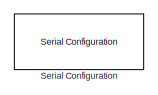
[diagram: root canvas - part 1/4, top left region]
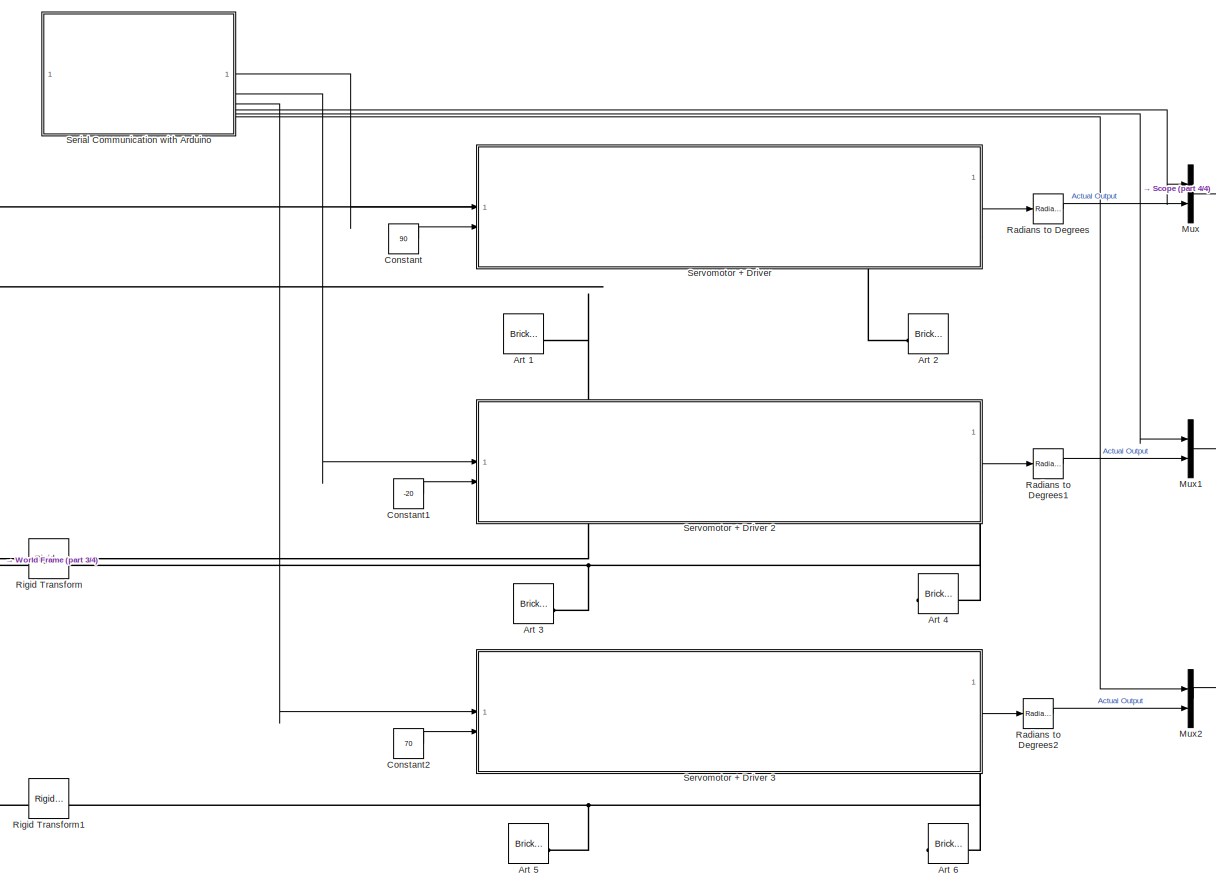
[diagram: root canvas - part 2/4, center side, full height]
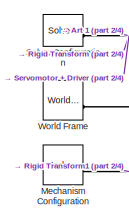
[diagram: root canvas - part 3/4, bottom left region]
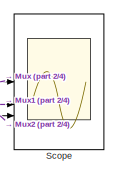
[diagram: root canvas - part 4/4, bottom right region]
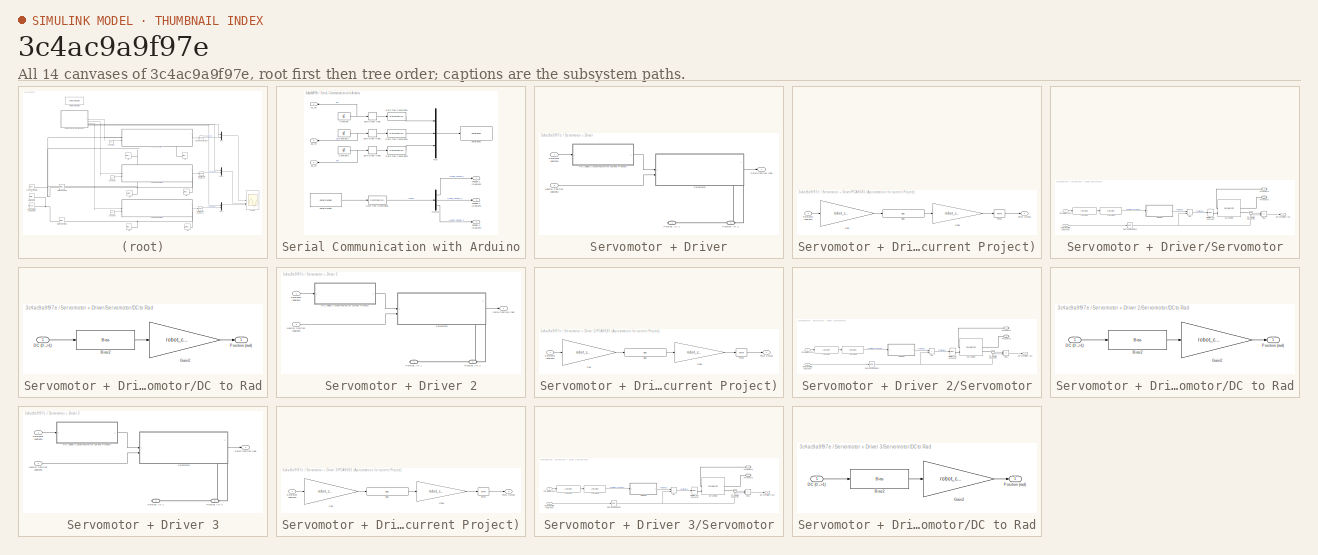
[diagram: thumbnail index - all 14 canvases of the model, root first then tree order]
MODEL slx_3c4ac9a9f97e
KIND model
CONFIG AbsTol = 1e-3
CONFIG EnableMultiTasking = off
CONFIG FixedStep = 0.001
CONFIG MaxStep = auto
CONFIG MinStep = auto
CONFIG RelTol = 1e-3
CONFIG SampleTimeConstraint = Unconstrained
CONFIG SolverName = VariableStepAuto
CONFIG StartTime = 0.0
CONFIG StopTime = 1
BLOCK [Reference] Art 1  REF=sm_lib/Body Elements/Brick Solid
  SourceBlock = sm_lib/Body Elements/Brick Solid
  SourceType = Brick Solid
BLOCK [Reference] Art 2  REF=sm_lib/Body Elements/Brick Solid
  SourceBlock = sm_lib/Body Elements/Brick Solid
  SourceType = Brick Solid
BLOCK [Reference] Art 3  REF=sm_lib/Body Elements/Brick Solid
  SourceBlock = sm_lib/Body Elements/Brick Solid
  SourceType = Brick Solid
BLOCK [Reference] Art 4  REF=sm_lib/Body Elements/Brick Solid
  SourceBlock = sm_lib/Body Elements/Brick Solid
  SourceType = Brick Solid
BLOCK [Reference] Art 5  REF=sm_lib/Body Elements/Brick Solid
  SourceBlock = sm_lib/Body Elements/Brick Solid
  SourceType = Brick Solid
BLOCK [Reference] Art 6  REF=sm_lib/Body Elements/Brick Solid
  SourceBlock = sm_lib/Body Elements/Brick Solid
  SourceType = Brick Solid
BLOCK [Constant] Constant
  Value = 90
BLOCK [Constant] Constant1
  Value = -20
BLOCK [Constant] Constant2
  Value = 70
BLOCK [Reference] Mechanism Configuration  REF=sm_lib/Utilities/Mechanism
Configuration
  SourceBlock = sm_lib/Utilities/Mechanism\nConfiguration
  SourceType = Mechanism\nConfiguration
BLOCK [Mux] Mux
  DisplayOption = bar
  Inputs = 2
BLOCK [Mux] Mux1
  DisplayOption = bar
  Inputs = 2
BLOCK [Mux] Mux2
  DisplayOption = bar
  Inputs = 2
BLOCK [Reference] Radians to Degrees  REF=simulink_extras/Transformations/Radians
to Degrees
  SourceBlock = simulink_extras/Transformations/Radians\nto Degrees
  SourceType = RadiansToDegrees
BLOCK [Reference] Radians to Degrees1  REF=simulink_extras/Transformations/Radians
to Degrees
  SourceBlock = simulink_extras/Transformations/Radians\nto Degrees
  SourceType = RadiansToDegrees
BLOCK [Reference] Radians to Degrees2  REF=simulink_extras/Transformations/Radians
to Degrees
  SourceBlock = simulink_extras/Transformations/Radians\nto Degrees
  SourceType = RadiansToDegrees
BLOCK [Reference] Rigid Transform  REF=sm_lib/Frames and
Transforms/Rigid
Transform
  SourceBlock = sm_lib/Frames and\nTransforms/Rigid\nTransform
  SourceType = Rigid\nTransform
BLOCK [Reference] Rigid Transform1  REF=sm_lib/Frames and
Transforms/Rigid
Transform
  SourceBlock = sm_lib/Frames and\nTransforms/Rigid\nTransform
  SourceType = Rigid\nTransform
BLOCK [Scope] Scope
  Floating = off
  NumInputPorts = 3
  ScopeSpecificationString = Simulink.scopes.TimeScopeBlockCfg('CurrentConfiguration', extmgr.ConfigurationSet(extmgr.Configuration('Core','General UI',true,'FigureColor',[0.501960784313725 0.501960784313725 0.501960784313725]),extmgr.Configuration('Core','Source UI',true),extmgr.Configuration('Sources','WiredSimulink',true),extmgr.Configuration('Visuals','Time Domain',true,'SerializedDisplays',{struct('MinYLimReal','-206.083...<+3864ch>
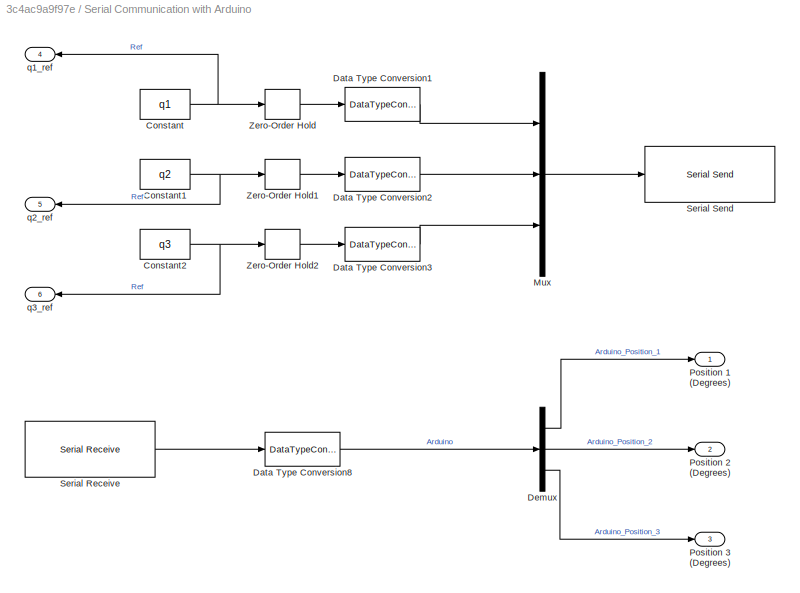
BLOCK [SubSystem] Serial Communication with Arduino
BLOCK [Constant] Serial Communication with Arduino/Constant
  Value = q1
BLOCK [Constant] Serial Communication with Arduino/Constant1
  Value = q2
BLOCK [Constant] Serial Communication with Arduino/Constant2
  Value = q3
BLOCK [DataTypeConversion] Serial Communication with Arduino/Data Type Conversion1
  OutDataTypeStr = single
  RndMeth = Floor
  SaturateOnIntegerOverflow = off
BLOCK [DataTypeConversion] Serial Communication with Arduino/Data Type Conversion2
  OutDataTypeStr = single
  RndMeth = Floor
  SaturateOnIntegerOverflow = off
BLOCK [DataTypeConversion] Serial Communication with Arduino/Data Type Conversion3
  OutDataTypeStr = single
  RndMeth = Floor
  SaturateOnIntegerOverflow = off
BLOCK [DataTypeConversion] Serial Communication with Arduino/Data Type Conversion8
  OutDataTypeStr = double
  RndMeth = Floor
  SaturateOnIntegerOverflow = off
BLOCK [Demux] Serial Communication with Arduino/Demux
  Outputs = 3
BLOCK [Mux] Serial Communication with Arduino/Mux
  DisplayOption = bar
  Inputs = 3
BLOCK [Outport] Serial Communication with Arduino/Position 1 (Degrees)
  NameLocation = right
BLOCK [Outport] Serial Communication with Arduino/Position 2 (Degrees)
  NameLocation = right
  Port = 2
BLOCK [Outport] Serial Communication with Arduino/Position 3 (Degrees)
  NameLocation = right
  Port = 3
BLOCK [Reference] Serial Communication with Arduino/Serial Receive  REF=instrumentseriallib/Serial Receive
  LibrarySourceBlock = instrumentlib/Serial Receive
  Priority = 1
  SourceBlock = instrumentseriallib/Serial Receive
  SourceType = system.SerialReceive
BLOCK [Reference] Serial Communication with Arduino/Serial Send  REF=instrumentseriallib/Serial Send
  LibrarySourceBlock = instrumentlib/Serial Send
  Priority = 1
  SourceBlock = instrumentseriallib/Serial Send
  SourceType = system.SerialSend
BLOCK [ZeroOrderHold] Serial Communication with Arduino/Zero-Order Hold
  SampleTime = 0.01
BLOCK [ZeroOrderHold] Serial Communication with Arduino/Zero-Order Hold1
  SampleTime = 0.01
BLOCK [ZeroOrderHold] Serial Communication with Arduino/Zero-Order Hold2
  SampleTime = 0.01
BLOCK [Outport] Serial Communication with Arduino/q1_ref
  Port = 4
BLOCK [Outport] Serial Communication with Arduino/q2_ref
  Port = 5
BLOCK [Outport] Serial Communication with Arduino/q3_ref
  Port = 6
BLOCK [Reference] Serial Configuration  REF=instrumentseriallib/Serial Configuration
  LibrarySourceBlock = instrumentlib/Serial Configuration
  Priority = -200000
  SourceBlock = instrumentseriallib/Serial Configuration
  SourceType = system.SerialConfiguration
BLOCK [SubSystem] Servomotor + Driver
  PortSchema = {"entries":[{"content":{"sides":[{"content":{"connectorIds":["In1","In2"]},"type":"ConnectorPlacement.EquallySpacedRectSide","uuid":"34aed934-2639-4a00-aaee-cf3027466446"},{"content":{"connectorIds":["Out1"],"side":"RIGHT"},"type":"ConnectorPlacement.EquallySpacedRectSide","uuid":"6801890d-3466-4e37-90e8-6d1471e5b2c4"},{"content":{"side":"TOP"},"type":"ConnectorPlacement.EquallySpacedRectSide","uu...<+389ch>  <repeated x3 — deduplicated; at blocks: Servomotor + Driver, Servomotor + Driver 2, Servomotor + Driver 3>
BLOCK [SubSystem] Servomotor + Driver 2
BLOCK [Inport] Servomotor + Driver 2/Neutral Position (degrees)
  Port = 2
BLOCK [SubSystem] Servomotor + Driver 2/PCA9685 (Aproximation for current Project)
BLOCK [Bias] Servomotor + Driver 2/PCA9685 (Aproximation for current Project)/Bias
  Bias = robot_conversions.steps_offset
  SaturateOnIntegerOverflow = off
BLOCK [Gain] Servomotor + Driver 2/PCA9685 (Aproximation for current Project)/Gain
  Gain = robot_conversions.steps_to_degrees
BLOCK [Gain] Servomotor + Driver 2/PCA9685 (Aproximation for current Project)/Gain1
  Gain = robot_conversions.degress_to_DC
BLOCK [Reference] Servomotor + Driver 2/PCA9685 (Aproximation for current Project)/PWM  REF=simulink/Discontinuities/PWM
  DisableCoverage = on
  SourceBlock = simulink/Discontinuities/PWM
  SourceType = PWM
BLOCK [Outport] Servomotor + Driver 2/PCA9685 (Aproximation for current Project)/PWM Output
  NameLocation = right
BLOCK [Inport] Servomotor + Driver 2/PCA9685 (Aproximation for current Project)/Reference (degrees)
  NameLocation = left
BLOCK [PMIOPort] Servomotor + Driver 2/Physical Art 1
  Side = Right
BLOCK [PMIOPort] Servomotor + Driver 2/Physical Art 2
  Port = 2
  Side = Right
BLOCK [Inport] Servomotor + Driver 2/Reference (degrees)
BLOCK [Outport] Servomotor + Driver 2/Servo Position (rad)
BLOCK [SubSystem] Servomotor + Driver 2/Servomotor
  PortSchema = {"entries":[{"content":{"sides":[{"content":{"connectorIds":["In1","In2"]},"type":"ConnectorPlacement.EquallySpacedRectSide","uuid":"eeff66d3-7cb0-4fe9-90b5-92935711e170"},{"content":{"connectorIds":["Out1"],"side":"RIGHT"},"type":"ConnectorPlacement.EquallySpacedRectSide","uuid":"4c1729b3-3224-4ed4-9eed-359312bd5e7e"},{"content":{"side":"TOP"},"type":"ConnectorPlacement.EquallySpacedRectSide","uu...<+389ch>  <repeated x3 — deduplicated; at blocks: Servomotor>
BLOCK [SubSystem] Servomotor + Driver 2/Servomotor/DC to Rad
BLOCK [Bias] Servomotor + Driver 2/Servomotor/DC to Rad/Bias2
  Bias = robot_conversions.DC_offset
  SaturateOnIntegerOverflow = off
BLOCK [Inport] Servomotor + Driver 2/Servomotor/DC to Rad/DC (0 -->1)
BLOCK [Gain] Servomotor + Driver 2/Servomotor/DC to Rad/Gain2
  Gain = robot_conversions.DC_to_rad
BLOCK [Outport] Servomotor + Driver 2/Servomotor/DC to Rad/Position (rad)
BLOCK [Reference] Servomotor + Driver 2/Servomotor/Degrees to Radians  REF=simulink_extras/Transformations/Degrees to
Radians
  SourceBlock = simulink_extras/Transformations/Degrees to\nRadians
  SourceType = DegreesToRadians
BLOCK [Reference] Servomotor + Driver 2/Servomotor/LTI System  REF=cstblocks/LTI System
  SourceBlock = cstblocks/LTI System
  SourceType = LTI Block
BLOCK [Reference] Servomotor + Driver 2/Servomotor/LTI System1  REF=cstblocks/LTI System
  SourceBlock = cstblocks/LTI System
  SourceType = LTI Block
BLOCK [Inport] Servomotor + Driver 2/Servomotor/Neutral Position (degrees)
  NameLocation = left
  Port = 2
BLOCK [Reference] Servomotor + Driver 2/Servomotor/PS-Simulink Converter  REF=nesl_utility/PS-Simulink
Converter
  SourceBlock = nesl_utility/PS-Simulink\nConverter
  SourceType = PS-Simulink\nConverter
BLOCK [Inport] Servomotor + Driver 2/Servomotor/PWM Reference
  NameLocation = left
BLOCK [PMIOPort] Servomotor + Driver 2/Servomotor/Physical Art 1
  Side = Right
BLOCK [PMIOPort] Servomotor + Driver 2/Servomotor/Physical Art 2
  Port = 2
  Side = Right
BLOCK [Sum] Servomotor + Driver 2/Servomotor/Plus
  IconShape = rectangular
BLOCK [Sum] Servomotor + Driver 2/Servomotor/Plus1
  IconShape = rectangular
  Inputs = +-
BLOCK [Outport] Servomotor + Driver 2/Servomotor/Servo Position (rad)
  NameLocation = right
BLOCK [Reference] Servomotor + Driver 2/Servomotor/Servomotor  REF=sm_lib/Joints/Revolute Joint
  SourceBlock = sm_lib/Joints/Revolute Joint
  SourceType = Revolute Joint
BLOCK [Reference] Servomotor + Driver 2/Servomotor/Simulink-PS Converter  REF=nesl_utility/Simulink-PS
Converter
  SourceBlock = nesl_utility/Simulink-PS\nConverter
  SourceType = Simulink-PS\nConverter
BLOCK [SubSystem] Servomotor + Driver 3
BLOCK [Inport] Servomotor + Driver 3/Neutral Position (degrees)
  Port = 2
BLOCK [SubSystem] Servomotor + Driver 3/PCA9685 (Aproximation for current Project)
BLOCK [Bias] Servomotor + Driver 3/PCA9685 (Aproximation for current Project)/Bias
  Bias = robot_conversions.steps_offset
  SaturateOnIntegerOverflow = off
BLOCK [Gain] Servomotor + Driver 3/PCA9685 (Aproximation for current Project)/Gain
  Gain = robot_conversions.steps_to_degrees
BLOCK [Gain] Servomotor + Driver 3/PCA9685 (Aproximation for current Project)/Gain1
  Gain = robot_conversions.degress_to_DC
BLOCK [Reference] Servomotor + Driver 3/PCA9685 (Aproximation for current Project)/PWM  REF=simulink/Discontinuities/PWM
  DisableCoverage = on
  SourceBlock = simulink/Discontinuities/PWM
  SourceType = PWM
BLOCK [Outport] Servomotor + Driver 3/PCA9685 (Aproximation for current Project)/PWM Output
  NameLocation = right
BLOCK [Inport] Servomotor + Driver 3/PCA9685 (Aproximation for current Project)/Reference (degrees)
  NameLocation = left
BLOCK [PMIOPort] Servomotor + Driver 3/Physical Art 1
  Side = Right
BLOCK [PMIOPort] Servomotor + Driver 3/Physical Art 2
  Port = 2
  Side = Right
BLOCK [Inport] Servomotor + Driver 3/Reference (degrees)
BLOCK [Outport] Servomotor + Driver 3/Servo Position (rad)
BLOCK [SubSystem] Servomotor + Driver 3/Servomotor
BLOCK [SubSystem] Servomotor + Driver 3/Servomotor/DC to Rad
BLOCK [Bias] Servomotor + Driver 3/Servomotor/DC to Rad/Bias2
  Bias = robot_conversions.DC_offset
  SaturateOnIntegerOverflow = off
BLOCK [Inport] Servomotor + Driver 3/Servomotor/DC to Rad/DC (0 -->1)
BLOCK [Gain] Servomotor + Driver 3/Servomotor/DC to Rad/Gain2
  Gain = robot_conversions.DC_to_rad
BLOCK [Outport] Servomotor + Driver 3/Servomotor/DC to Rad/Position (rad)
BLOCK [Reference] Servomotor + Driver 3/Servomotor/Degrees to Radians  REF=simulink_extras/Transformations/Degrees to
Radians
  SourceBlock = simulink_extras/Transformations/Degrees to\nRadians
  SourceType = DegreesToRadians
BLOCK [Reference] Servomotor + Driver 3/Servomotor/LTI System  REF=cstblocks/LTI System
  SourceBlock = cstblocks/LTI System
  SourceType = LTI Block
BLOCK [Reference] Servomotor + Driver 3/Servomotor/LTI System1  REF=cstblocks/LTI System
  SourceBlock = cstblocks/LTI System
  SourceType = LTI Block
BLOCK [Inport] Servomotor + Driver 3/Servomotor/Neutral Position (degrees)
  NameLocation = left
  Port = 2
BLOCK [Reference] Servomotor + Driver 3/Servomotor/PS-Simulink Converter  REF=nesl_utility/PS-Simulink
Converter
  SourceBlock = nesl_utility/PS-Simulink\nConverter
  SourceType = PS-Simulink\nConverter
BLOCK [Inport] Servomotor + Driver 3/Servomotor/PWM Reference
  NameLocation = left
BLOCK [PMIOPort] Servomotor + Driver 3/Servomotor/Physical Art 1
  Side = Right
BLOCK [PMIOPort] Servomotor + Driver 3/Servomotor/Physical Art 2
  Port = 2
  Side = Right
BLOCK [Sum] Servomotor + Driver 3/Servomotor/Plus
  IconShape = rectangular
BLOCK [Sum] Servomotor + Driver 3/Servomotor/Plus1
  IconShape = rectangular
  Inputs = +-
BLOCK [Outport] Servomotor + Driver 3/Servomotor/Servo Position (rad)
  NameLocation = right
BLOCK [Reference] Servomotor + Driver 3/Servomotor/Servomotor  REF=sm_lib/Joints/Revolute Joint
  SourceBlock = sm_lib/Joints/Revolute Joint
  SourceType = Revolute Joint
BLOCK [Reference] Servomotor + Driver 3/Servomotor/Simulink-PS Converter  REF=nesl_utility/Simulink-PS
Converter
  SourceBlock = nesl_utility/Simulink-PS\nConverter
  SourceType = Simulink-PS\nConverter
BLOCK [Inport] Servomotor + Driver/Neutral Position (degrees)
  Port = 2
BLOCK [SubSystem] Servomotor + Driver/PCA9685 (Aproximation for current Project)
BLOCK [Bias] Servomotor + Driver/PCA9685 (Aproximation for current Project)/Bias
  Bias = robot_conversions.steps_offset
  SaturateOnIntegerOverflow = off
BLOCK [Gain] Servomotor + Driver/PCA9685 (Aproximation for current Project)/Gain
  Gain = robot_conversions.steps_to_degrees
BLOCK [Gain] Servomotor + Driver/PCA9685 (Aproximation for current Project)/Gain1
  Gain = robot_conversions.degress_to_DC
BLOCK [Reference] Servomotor + Driver/PCA9685 (Aproximation for current Project)/PWM  REF=simulink/Discontinuities/PWM
  DisableCoverage = on
  SourceBlock = simulink/Discontinuities/PWM
  SourceType = PWM
BLOCK [Outport] Servomotor + Driver/PCA9685 (Aproximation for current Project)/PWM Output
  NameLocation = right
BLOCK [Inport] Servomotor + Driver/PCA9685 (Aproximation for current Project)/Reference (degrees)
  NameLocation = left
BLOCK [PMIOPort] Servomotor + Driver/Physical Art 1
  Side = Right
BLOCK [PMIOPort] Servomotor + Driver/Physical Art 2
  Port = 2
  Side = Right
BLOCK [Inport] Servomotor + Driver/Reference (degrees)
BLOCK [Outport] Servomotor + Driver/Servo Position (rad)
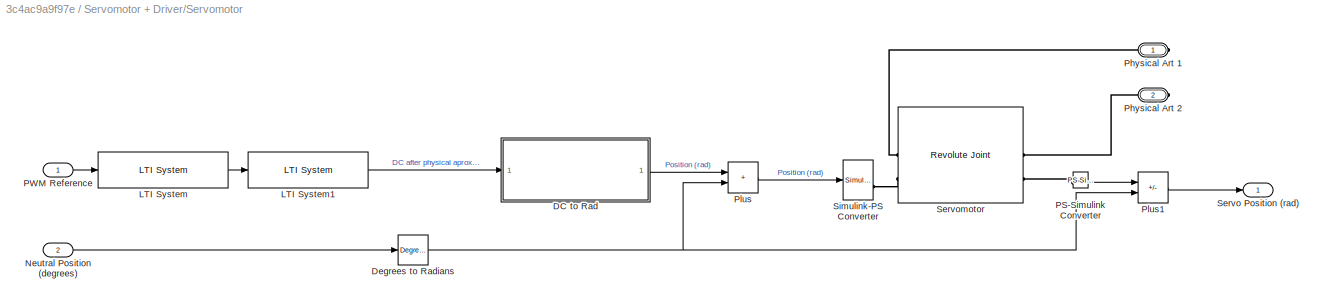
BLOCK [SubSystem] Servomotor + Driver/Servomotor
BLOCK [SubSystem] Servomotor + Driver/Servomotor/DC to Rad
BLOCK [Bias] Servomotor + Driver/Servomotor/DC to Rad/Bias2
  Bias = robot_conversions.DC_offset
  SaturateOnIntegerOverflow = off
BLOCK [Inport] Servomotor + Driver/Servomotor/DC to Rad/DC (0 -->1)
BLOCK [Gain] Servomotor + Driver/Servomotor/DC to Rad/Gain2
  Gain = robot_conversions.DC_to_rad
BLOCK [Outport] Servomotor + Driver/Servomotor/DC to Rad/Position (rad)
BLOCK [Reference] Servomotor + Driver/Servomotor/Degrees to Radians  REF=simulink_extras/Transformations/Degrees to
Radians
  SourceBlock = simulink_extras/Transformations/Degrees to\nRadians
  SourceType = DegreesToRadians
BLOCK [Reference] Servomotor + Driver/Servomotor/LTI System  REF=cstblocks/LTI System
  SourceBlock = cstblocks/LTI System
  SourceType = LTI Block
BLOCK [Reference] Servomotor + Driver/Servomotor/LTI System1  REF=cstblocks/LTI System
  SourceBlock = cstblocks/LTI System
  SourceType = LTI Block
BLOCK [Inport] Servomotor + Driver/Servomotor/Neutral Position (degrees)
  NameLocation = left
  Port = 2
BLOCK [Reference] Servomotor + Driver/Servomotor/PS-Simulink Converter  REF=nesl_utility/PS-Simulink
Converter
  SourceBlock = nesl_utility/PS-Simulink\nConverter
  SourceType = PS-Simulink\nConverter
BLOCK [Inport] Servomotor + Driver/Servomotor/PWM Reference
  NameLocation = left
BLOCK [PMIOPort] Servomotor + Driver/Servomotor/Physical Art 1
  Side = Right
BLOCK [PMIOPort] Servomotor + Driver/Servomotor/Physical Art 2
  Port = 2
  Side = Right
BLOCK [Sum] Servomotor + Driver/Servomotor/Plus
  IconShape = rectangular
BLOCK [Sum] Servomotor + Driver/Servomotor/Plus1
  IconShape = rectangular
  Inputs = +-
BLOCK [Outport] Servomotor + Driver/Servomotor/Servo Position (rad)
  NameLocation = right
BLOCK [Reference] Servomotor + Driver/Servomotor/Servomotor  REF=sm_lib/Joints/Revolute Joint
  SourceBlock = sm_lib/Joints/Revolute Joint
  SourceType = Revolute Joint
BLOCK [Reference] Servomotor + Driver/Servomotor/Simulink-PS Converter  REF=nesl_utility/Simulink-PS
Converter
  SourceBlock = nesl_utility/Simulink-PS\nConverter
  SourceType = Simulink-PS\nConverter
BLOCK [Reference] Solver Configuration  REF=nesl_utility/Solver
Configuration
  SourceBlock = nesl_utility/Solver\nConfiguration
  SourceType = Solver\nConfiguration
BLOCK [Reference] World Frame  REF=sm_lib/Frames and
Transforms/World Frame
  SourceBlock = sm_lib/Frames and\nTransforms/World Frame
  SourceType = World Frame
LINE Constant1:1 -> Servomotor + Driver 2:2
LINE Constant2:1 -> Servomotor + Driver 3:2
LINE Constant:1 -> Servomotor + Driver:2
LINE Mux1:1 -> Scope:2
LINE Mux2:1 -> Scope:3
LINE Mux:1 -> Scope:1
LINE Radians to Degrees1:1 -> Mux1:2
LINE Radians to Degrees2:1 -> Mux2:2
LINE Radians to Degrees:1 -> Mux:2
NET Serial Communication with Arduino/Constant1:1 -> Serial Communication with Arduino/Zero-Order Hold1:1, Serial Communication with Arduino/q2_ref:1
NET Serial Communication with Arduino/Constant2:1 -> Serial Communication with Arduino/Zero-Order Hold2:1, Serial Communication with Arduino/q3_ref:1
NET Serial Communication with Arduino/Constant:1 -> Serial Communication with Arduino/Zero-Order Hold:1, Serial Communication with Arduino/q1_ref:1
LINE Serial Communication with Arduino/Data Type Conversion1:1 -> Serial Communication with Arduino/Mux:1
LINE Serial Communication with Arduino/Data Type Conversion2:1 -> Serial Communication with Arduino/Mux:2
LINE Serial Communication with Arduino/Data Type Conversion3:1 -> Serial Communication with Arduino/Mux:3
LINE Serial Communication with Arduino/Data Type Conversion8:1 -> Serial Communication with Arduino/Demux:1
LINE Serial Communication with Arduino/Demux:1 -> Serial Communication with Arduino/Position 1 (Degrees):1
LINE Serial Communication with Arduino/Demux:2 -> Serial Communication with Arduino/Position 2 (Degrees):1
LINE Serial Communication with Arduino/Demux:3 -> Serial Communication with Arduino/Position 3 (Degrees):1
LINE Serial Communication with Arduino/Mux:1 -> Serial Communication with Arduino/Serial Send:1
LINE Serial Communication with Arduino/Serial Receive:1 -> Serial Communication with Arduino/Data Type Conversion8:1
LINE Serial Communication with Arduino/Zero-Order Hold1:1 -> Serial Communication with Arduino/Data Type Conversion2:1
LINE Serial Communication with Arduino/Zero-Order Hold2:1 -> Serial Communication with Arduino/Data Type Conversion3:1
LINE Serial Communication with Arduino/Zero-Order Hold:1 -> Serial Communication with Arduino/Data Type Conversion1:1
LINE Serial Communication with Arduino:1 -> Servomotor + Driver:1
LINE Serial Communication with Arduino:2 -> Servomotor + Driver 2:1
LINE Serial Communication with Arduino:3 -> Servomotor + Driver 3:1
LINE Serial Communication with Arduino:4 -> Mux:1
LINE Serial Communication with Arduino:5 -> Mux1:1
LINE Serial Communication with Arduino:6 -> Mux2:1
LINE Servomotor + Driver 2/Neutral Position (degrees):1 -> Servomotor + Driver 2/Servomotor:2
LINE Servomotor + Driver 2/PCA9685 (Aproximation for current Project)/Bias:1 -> Servomotor + Driver 2/PCA9685 (Aproximation for current Project)/Gain1:1
LINE Servomotor + Driver 2/PCA9685 (Aproximation for current Project)/Gain1:1 -> Servomotor + Driver 2/PCA9685 (Aproximation for current Project)/PWM:1
LINE Servomotor + Driver 2/PCA9685 (Aproximation for current Project)/Gain:1 -> Servomotor + Driver 2/PCA9685 (Aproximation for current Project)/Bias:1
LINE Servomotor + Driver 2/PCA9685 (Aproximation for current Project)/PWM:1 -> Servomotor + Driver 2/PCA9685 (Aproximation for current Project)/PWM Output:1
LINE Servomotor + Driver 2/PCA9685 (Aproximation for current Project)/Reference (degrees):1 -> Servomotor + Driver 2/PCA9685 (Aproximation for current Project)/Gain:1
LINE Servomotor + Driver 2/PCA9685 (Aproximation for current Project):1 -> Servomotor + Driver 2/Servomotor:1
LINE Servomotor + Driver 2/Reference (degrees):1 -> Servomotor + Driver 2/PCA9685 (Aproximation for current Project):1
LINE Servomotor + Driver 2/Servomotor/DC to Rad/Bias2:1 -> Servomotor + Driver 2/Servomotor/DC to Rad/Gain2:1
LINE Servomotor + Driver 2/Servomotor/DC to Rad/DC (0 -->1):1 -> Servomotor + Driver 2/Servomotor/DC to Rad/Bias2:1
LINE Servomotor + Driver 2/Servomotor/DC to Rad/Gain2:1 -> Servomotor + Driver 2/Servomotor/DC to Rad/Position (rad):1
LINE Servomotor + Driver 2/Servomotor/DC to Rad:1 -> Servomotor + Driver 2/Servomotor/Plus:1
NET Servomotor + Driver 2/Servomotor/Degrees to Radians:1 -> Servomotor + Driver 2/Servomotor/Plus1:2, Servomotor + Driver 2/Servomotor/Plus:2
LINE Servomotor + Driver 2/Servomotor/LTI System1:1 -> Servomotor + Driver 2/Servomotor/DC to Rad:1
LINE Servomotor + Driver 2/Servomotor/LTI System:1 -> Servomotor + Driver 2/Servomotor/LTI System1:1
LINE Servomotor + Driver 2/Servomotor/Neutral Position (degrees):1 -> Servomotor + Driver 2/Servomotor/Degrees to Radians:1
LINE Servomotor + Driver 2/Servomotor/PS-Simulink Converter:1 -> Servomotor + Driver 2/Servomotor/Plus1:1
LINE Servomotor + Driver 2/Servomotor/PWM Reference:1 -> Servomotor + Driver 2/Servomotor/LTI System:1
LINE Servomotor + Driver 2/Servomotor/Plus1:1 -> Servomotor + Driver 2/Servomotor/Servo Position (rad):1
LINE Servomotor + Driver 2/Servomotor/Plus:1 -> Servomotor + Driver 2/Servomotor/Simulink-PS Converter:1
LINE Servomotor + Driver 2/Servomotor:1 -> Servomotor + Driver 2/Servo Position (rad):1
LINE Servomotor + Driver 2:1 -> Radians to Degrees1:1
LINE Servomotor + Driver 3/Neutral Position (degrees):1 -> Servomotor + Driver 3/Servomotor:2
LINE Servomotor + Driver 3/PCA9685 (Aproximation for current Project)/Bias:1 -> Servomotor + Driver 3/PCA9685 (Aproximation for current Project)/Gain1:1
LINE Servomotor + Driver 3/PCA9685 (Aproximation for current Project)/Gain1:1 -> Servomotor + Driver 3/PCA9685 (Aproximation for current Project)/PWM:1
LINE Servomotor + Driver 3/PCA9685 (Aproximation for current Project)/Gain:1 -> Servomotor + Driver 3/PCA9685 (Aproximation for current Project)/Bias:1
LINE Servomotor + Driver 3/PCA9685 (Aproximation for current Project)/PWM:1 -> Servomotor + Driver 3/PCA9685 (Aproximation for current Project)/PWM Output:1
LINE Servomotor + Driver 3/PCA9685 (Aproximation for current Project)/Reference (degrees):1 -> Servomotor + Driver 3/PCA9685 (Aproximation for current Project)/Gain:1
LINE Servomotor + Driver 3/PCA9685 (Aproximation for current Project):1 -> Servomotor + Driver 3/Servomotor:1
LINE Servomotor + Driver 3/Reference (degrees):1 -> Servomotor + Driver 3/PCA9685 (Aproximation for current Project):1
LINE Servomotor + Driver 3/Servomotor/DC to Rad/Bias2:1 -> Servomotor + Driver 3/Servomotor/DC to Rad/Gain2:1
LINE Servomotor + Driver 3/Servomotor/DC to Rad/DC (0 -->1):1 -> Servomotor + Driver 3/Servomotor/DC to Rad/Bias2:1
LINE Servomotor + Driver 3/Servomotor/DC to Rad/Gain2:1 -> Servomotor + Driver 3/Servomotor/DC to Rad/Position (rad):1
LINE Servomotor + Driver 3/Servomotor/DC to Rad:1 -> Servomotor + Driver 3/Servomotor/Plus:1
NET Servomotor + Driver 3/Servomotor/Degrees to Radians:1 -> Servomotor + Driver 3/Servomotor/Plus1:2, Servomotor + Driver 3/Servomotor/Plus:2
LINE Servomotor + Driver 3/Servomotor/LTI System1:1 -> Servomotor + Driver 3/Servomotor/DC to Rad:1
LINE Servomotor + Driver 3/Servomotor/LTI System:1 -> Servomotor + Driver 3/Servomotor/LTI System1:1
LINE Servomotor + Driver 3/Servomotor/Neutral Position (degrees):1 -> Servomotor + Driver 3/Servomotor/Degrees to Radians:1
LINE Servomotor + Driver 3/Servomotor/PS-Simulink Converter:1 -> Servomotor + Driver 3/Servomotor/Plus1:1
LINE Servomotor + Driver 3/Servomotor/PWM Reference:1 -> Servomotor + Driver 3/Servomotor/LTI System:1
LINE Servomotor + Driver 3/Servomotor/Plus1:1 -> Servomotor + Driver 3/Servomotor/Servo Position (rad):1
LINE Servomotor + Driver 3/Servomotor/Plus:1 -> Servomotor + Driver 3/Servomotor/Simulink-PS Converter:1
LINE Servomotor + Driver 3/Servomotor:1 -> Servomotor + Driver 3/Servo Position (rad):1
LINE Servomotor + Driver 3:1 -> Radians to Degrees2:1
LINE Servomotor + Driver/Neutral Position (degrees):1 -> Servomotor + Driver/Servomotor:2
LINE Servomotor + Driver/PCA9685 (Aproximation for current Project)/Bias:1 -> Servomotor + Driver/PCA9685 (Aproximation for current Project)/Gain1:1
LINE Servomotor + Driver/PCA9685 (Aproximation for current Project)/Gain1:1 -> Servomotor + Driver/PCA9685 (Aproximation for current Project)/PWM:1
LINE Servomotor + Driver/PCA9685 (Aproximation for current Project)/Gain:1 -> Servomotor + Driver/PCA9685 (Aproximation for current Project)/Bias:1
LINE Servomotor + Driver/PCA9685 (Aproximation for current Project)/PWM:1 -> Servomotor + Driver/PCA9685 (Aproximation for current Project)/PWM Output:1
LINE Servomotor + Driver/PCA9685 (Aproximation for current Project)/Reference (degrees):1 -> Servomotor + Driver/PCA9685 (Aproximation for current Project)/Gain:1
LINE Servomotor + Driver/PCA9685 (Aproximation for current Project):1 -> Servomotor + Driver/Servomotor:1
LINE Servomotor + Driver/Reference (degrees):1 -> Servomotor + Driver/PCA9685 (Aproximation for current Project):1
LINE Servomotor + Driver/Servomotor/DC to Rad/Bias2:1 -> Servomotor + Driver/Servomotor/DC to Rad/Gain2:1
LINE Servomotor + Driver/Servomotor/DC to Rad/DC (0 -->1):1 -> Servomotor + Driver/Servomotor/DC to Rad/Bias2:1
LINE Servomotor + Driver/Servomotor/DC to Rad/Gain2:1 -> Servomotor + Driver/Servomotor/DC to Rad/Position (rad):1
LINE Servomotor + Driver/Servomotor/DC to Rad:1 -> Servomotor + Driver/Servomotor/Plus:1
NET Servomotor + Driver/Servomotor/Degrees to Radians:1 -> Servomotor + Driver/Servomotor/Plus1:2, Servomotor + Driver/Servomotor/Plus:2
LINE Servomotor + Driver/Servomotor/LTI System1:1 -> Servomotor + Driver/Servomotor/DC to Rad:1
LINE Servomotor + Driver/Servomotor/LTI System:1 -> Servomotor + Driver/Servomotor/LTI System1:1
LINE Servomotor + Driver/Servomotor/Neutral Position (degrees):1 -> Servomotor + Driver/Servomotor/Degrees to Radians:1
LINE Servomotor + Driver/Servomotor/PS-Simulink Converter:1 -> Servomotor + Driver/Servomotor/Plus1:1
LINE Servomotor + Driver/Servomotor/PWM Reference:1 -> Servomotor + Driver/Servomotor/LTI System:1
LINE Servomotor + Driver/Servomotor/Plus1:1 -> Servomotor + Driver/Servomotor/Servo Position (rad):1
LINE Servomotor + Driver/Servomotor/Plus:1 -> Servomotor + Driver/Servomotor/Simulink-PS Converter:1
LINE Servomotor + Driver/Servomotor:1 -> Servomotor + Driver/Servo Position (rad):1
LINE Servomotor + Driver:1 -> Radians to Degrees:1
PNET net1: Art 1:LConn1 -- Mechanism Configuration:RConn1 -- Rigid Transform1:LConn1 -- Rigid Transform:LConn1 -- Servomotor + Driver:RConn1 -- Solver Configuration:RConn1 -- World Frame:RConn1
PLINE Art 2:LConn1 -- Servomotor + Driver:RConn2
PNET net2: Art 3:LConn1 -- Rigid Transform:RConn1 -- Servomotor + Driver 2:RConn1
PLINE Art 4:LConn1 -- Servomotor + Driver 2:RConn2
PNET net3: Art 5:LConn1 -- Rigid Transform1:RConn1 -- Servomotor + Driver 3:RConn1
PLINE Art 6:LConn1 -- Servomotor + Driver 3:RConn2
PLINE Servomotor + Driver 2/Physical Art 1:RConn1 -- Servomotor + Driver 2/Servomotor:RConn1
PLINE Servomotor + Driver 2/Physical Art 2:RConn1 -- Servomotor + Driver 2/Servomotor:RConn2
PLINE Servomotor + Driver 2/Servomotor/PS-Simulink Converter:LConn1 -- Servomotor + Driver 2/Servomotor/Servomotor:RConn2
PLINE Servomotor + Driver 2/Servomotor/Physical Art 1:RConn1 -- Servomotor + Driver 2/Servomotor/Servomotor:LConn1
PLINE Servomotor + Driver 2/Servomotor/Physical Art 2:RConn1 -- Servomotor + Driver 2/Servomotor/Servomotor:RConn1
PLINE Servomotor + Driver 2/Servomotor/Servomotor:LConn2 -- Servomotor + Driver 2/Servomotor/Simulink-PS Converter:RConn1
PLINE Servomotor + Driver 3/Physical Art 1:RConn1 -- Servomotor + Driver 3/Servomotor:RConn1
PLINE Servomotor + Driver 3/Physical Art 2:RConn1 -- Servomotor + Driver 3/Servomotor:RConn2
PLINE Servomotor + Driver 3/Servomotor/PS-Simulink Converter:LConn1 -- Servomotor + Driver 3/Servomotor/Servomotor:RConn2
PLINE Servomotor + Driver 3/Servomotor/Physical Art 1:RConn1 -- Servomotor + Driver 3/Servomotor/Servomotor:LConn1
PLINE Servomotor + Driver 3/Servomotor/Physical Art 2:RConn1 -- Servomotor + Driver 3/Servomotor/Servomotor:RConn1
PLINE Servomotor + Driver 3/Servomotor/Servomotor:LConn2 -- Servomotor + Driver 3/Servomotor/Simulink-PS Converter:RConn1
PLINE Servomotor + Driver/Physical Art 1:RConn1 -- Servomotor + Driver/Servomotor:RConn1
PLINE Servomotor + Driver/Physical Art 2:RConn1 -- Servomotor + Driver/Servomotor:RConn2
PLINE Servomotor + Driver/Servomotor/PS-Simulink Converter:LConn1 -- Servomotor + Driver/Servomotor/Servomotor:RConn2
PLINE Servomotor + Driver/Servomotor/Physical Art 1:RConn1 -- Servomotor + Driver/Servomotor/Servomotor:LConn1
PLINE Servomotor + Driver/Servomotor/Physical Art 2:RConn1 -- Servomotor + Driver/Servomotor/Servomotor:RConn1
PLINE Servomotor + Driver/Servomotor/Servomotor:LConn2 -- Servomotor + Driver/Servomotor/Simulink-PS Converter:RConn1
note: NET lines group one-source signal fan-out (src -> all destinations, sorted); 1:1 wires keep LINE; PNET lines group multi-terminal physical nets as a canonical sorted terminal list (undirected conserving connections); 2-terminal nets keep the pairwise PLINE form
